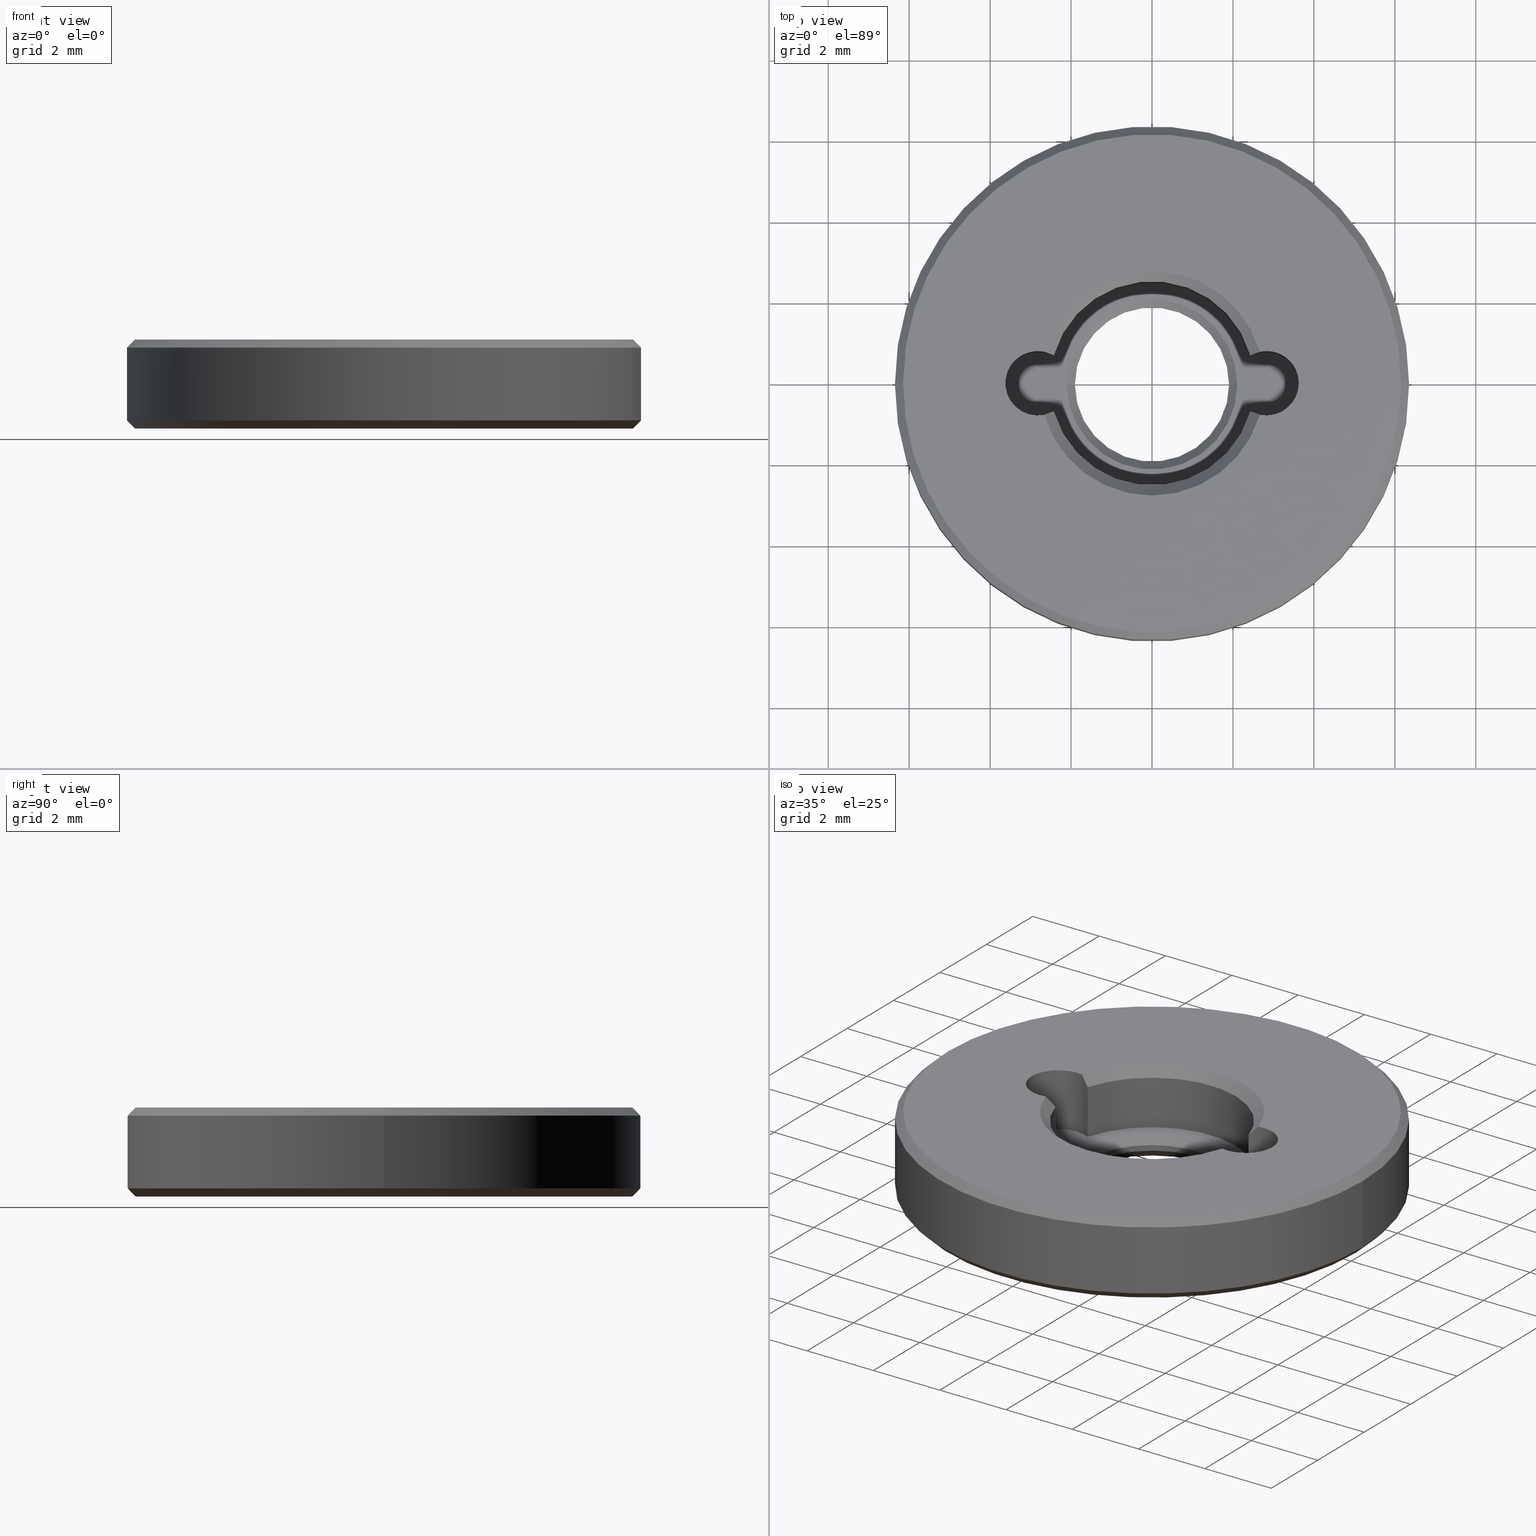
[diagram: canonical four-view strip — front | top / right | iso, engineering-drawing reading convention]
A machine part, canonical four-view strip (front | top / right | iso — engineering-drawing reading convention). The complete STEP part file that produces these views, byte-faithful:
ISO-10303-21;
HEADER;
FILE_DESCRIPTION (( 'STEP AP203' ),
    '1' );
FILE_NAME ('1.6.4.5-ZSJ-05-5.STEP',
    '2024-04-15T05:49:25',
    ( '' ),
    ( '' ),
    'SwSTEP 2.0',
    'SolidWorks 2021',
    '' );
FILE_SCHEMA (( 'CONFIG_CONTROL_DESIGN' ));
ENDSEC;

DATA;
#1 = CARTESIAN_POINT ( 'NONE',  ( 1.905000000000000027, 0.000000000000000000, 0.000000000000000000 ) ) ;
#2 = CARTESIAN_POINT ( 'NONE',  ( 1.905000000000000027, 0.000000000000000000, 0.2500000000000008882 ) ) ;
#3 = ORIENTED_EDGE ( 'NONE', *, *, #493, .F. ) ;
#4 = EDGE_CURVE ( 'NONE', #21, #462, #31, .T. ) ;
#5 = CARTESIAN_POINT ( 'NONE',  ( 2.427654867256636706, -0.6943463440424815225, 1.949999999999998623 ) ) ;
#6 = DIRECTION ( 'NONE',  ( 1.000000000000000000, 0.000000000000000000, 0.000000000000000000 ) ) ;
#7 = CC_DESIGN_PERSON_AND_ORGANIZATION_ASSIGNMENT ( #301, #518, ( #390 ) ) ;
#8 = CARTESIAN_POINT ( 'NONE',  ( 0.000000000000000000, 0.000000000000000000, 0.1999999999999987899 ) ) ;
#9 = EDGE_LOOP ( 'NONE', ( #118, #328, #132, #281 ) ) ;
#10 = AXIS2_PLACEMENT_3D ( 'NONE', #170, #382, #608 ) ;
#11 = ADVANCED_FACE ( 'NONE', ( #486 ), #342, .F. ) ;
#12 = CARTESIAN_POINT ( 'NONE',  ( -2.427654867256636706, -0.6943463440424824107, 1.400000000000000133 ) ) ;
#13 = DIRECTION ( 'NONE',  ( 1.000000000000000000, 0.000000000000000000, 0.000000000000000000 ) ) ;
#14 = ORIENTED_EDGE ( 'NONE', *, *, #179, .T. ) ;
#15 = MECHANICAL_CONTEXT ( 'NONE', #686, 'mechanical' ) ;
#16 = DIRECTION ( 'NONE',  ( 1.000000000000000000, 0.000000000000000000, 0.000000000000000000 ) ) ;
#17 = VERTEX_POINT ( 'NONE', #163 ) ;
#18 = APPLICATION_CONTEXT ( 'configuration controlled 3d designs of mechanical parts and assemblies' ) ;
#19 = DIRECTION ( 'NONE',  ( -0.000000000000000000, -0.000000000000000000, -1.000000000000000000 ) ) ;
#20 = DIRECTION ( 'NONE',  ( 0.000000000000000000, 0.000000000000000000, -1.000000000000000000 ) ) ;
#21 = VERTEX_POINT ( 'NONE', #150 ) ;
#22 = VECTOR ( 'NONE', #269, 999.9999999999998863 ) ;
#23 = APPROVAL_STATUS ( 'not_yet_approved' ) ;
#24 = VECTOR ( 'NONE', #617, 1000.000000000000000 ) ;
#25 = ORIENTED_EDGE ( 'NONE', *, *, #26, .T. ) ;
#26 = EDGE_CURVE ( 'NONE', #653, #522, #477, .T. ) ;
#27 = COORDINATED_UNIVERSAL_TIME_OFFSET ( 8, 0, .AHEAD. ) ;
#28 = CARTESIAN_POINT ( 'NONE',  ( 2.824999999999999734, 3.459627207591272175E-16, 2.200000000000000178 ) ) ;
#29 = ORIENTED_EDGE ( 'NONE', *, *, #311, .F. ) ;
#30 = APPROVAL ( #627, 'δָ��' ) ;
#31 = CIRCLE ( 'NONE', #373, 1.905000000000000027 ) ;
#32 = CARTESIAN_POINT ( 'NONE',  ( -2.579803107964387721, 0.7661303284904835698, 2.116150911711492721 ) ) ;
#33 = DIRECTION ( 'NONE',  ( 0.000000000000000000, 0.000000000000000000, 1.000000000000000000 ) ) ;
#34 = VERTEX_POINT ( 'NONE', #268 ) ;
#35 = PRODUCT ( '1.6.4.5-ZSJ-05-5', '1.6.4.5-ZSJ-05-5', '', ( #15 ) ) ;
#36 = CONICAL_SURFACE ( 'NONE', #290, 2.155000000000000693, 0.7853981633974479459 ) ;
#37 = EDGE_CURVE ( 'NONE', #440, #17, #554, .T. ) ;
#38 = VERTEX_POINT ( 'NONE', #262 ) ;
#39 = FACE_OUTER_BOUND ( 'NONE', #178, .T. ) ;
#40 = DIRECTION ( 'NONE',  ( 1.000000000000000000, 0.000000000000000000, 0.000000000000000000 ) ) ;
#41 = CARTESIAN_POINT ( 'NONE',  ( 2.427654867256636706, -0.6943463440424815225, 1.949999999999998623 ) ) ;
#42 = DIRECTION ( 'NONE',  ( 0.7071067811865490160, 0.000000000000000000, 0.7071067811865460184 ) ) ;
#43 = CARTESIAN_POINT ( 'NONE',  ( -2.155000000000000693, 0.000000000000000000, 0.000000000000000000 ) ) ;
#44 = CIRCLE ( 'NONE', #10, 2.524999999999999911 ) ;
#45 = CARTESIAN_POINT ( 'NONE',  ( -2.824999999999999734, -3.459627207591272175E-16, -1.662741699796954853 ) ) ;
#46 = EDGE_CURVE ( 'NONE', #446, #550, #640, .T. ) ;
#47 = CALENDAR_DATE ( 2024, 15, 4 ) ;
#48 = CARTESIAN_POINT ( 'NONE',  ( 6.349999999999999645, 7.776507174585692163E-16, 0.1999999999999987899 ) ) ;
#49 = CARTESIAN_POINT ( 'NONE',  ( -2.427654867256636706, 0.6943463440424816335, 1.400000000000000133 ) ) ;
#50 = EDGE_LOOP ( 'NONE', ( #309, #559, #89, #507, #454 ) ) ;
#51 = CARTESIAN_POINT ( 'NONE',  ( -6.349999999999999645, 7.776507174585692163E-16, 0.1999999999999987899 ) ) ;
#52 = CARTESIAN_POINT ( 'NONE',  ( 0.000000000000000000, 0.000000000000000000, 2.200000000000000178 ) ) ;
#53 = AXIS2_PLACEMENT_3D ( 'NONE', #439, #376, #40 ) ;
#54 = EDGE_CURVE ( 'NONE', #443, #603, #146, .T. ) ;
#55 = CARTESIAN_POINT ( 'NONE',  ( 0.000000000000000000, 0.000000000000000000, 0.4000000000000016875 ) ) ;
#56 = VERTEX_POINT ( 'NONE', #698 ) ;
#57 = ORIENTED_EDGE ( 'NONE', *, *, #152, .F. ) ;
#58 = LOCAL_TIME ( 13, 49, 25.00000000000000000, #193 ) ;
#59 = DIRECTION ( 'NONE',  ( 0.000000000000000000, 0.000000000000000000, 1.000000000000000000 ) ) ;
#60 = CARTESIAN_POINT ( 'NONE',  ( 0.000000000000000000, 0.000000000000000000, 0.1999999999999987899 ) ) ;
#61 = ORIENTED_EDGE ( 'NONE', *, *, #457, .T. ) ;
#62 = DIRECTION ( 'NONE',  ( -1.000000000000000000, 0.000000000000000000, 0.000000000000000000 ) ) ;
#63 = AXIS2_PLACEMENT_3D ( 'NONE', #212, #205, #650 ) ;
#64 = DIRECTION ( 'NONE',  ( -1.000000000000000000, 0.000000000000000000, 0.000000000000000000 ) ) ;
#65 = ORIENTED_EDGE ( 'NONE', *, *, #292, .T. ) ;
#66 = CARTESIAN_POINT ( 'NONE',  ( 6.349999999999999645, 0.000000000000000000, 0.1999999999999987899 ) ) ;
#67 = CONICAL_SURFACE ( 'NONE', #469, 6.349999999999999645, 0.7853981633974504994 ) ;
#68 = ORIENTED_EDGE ( 'NONE', *, *, #287, .F. ) ;
#69 = EDGE_CURVE ( 'NONE', #387, #187, #240, .T. ) ;
#70 = DIRECTION ( 'NONE',  ( -0.000000000000000000, -0.000000000000000000, 1.000000000000000000 ) ) ;
#71 = ORIENTED_EDGE ( 'NONE', *, *, #451, .F. ) ;
#72 = APPLICATION_PROTOCOL_DEFINITION ( 'international standard', 'config_control_design', 1994, #686 ) ;
#73 = ORIENTED_EDGE ( 'NONE', *, *, #206, .T. ) ;
#74 = EDGE_CURVE ( 'NONE', #243, #502, #93, .T. ) ;
#75 = DIRECTION ( 'NONE',  ( 1.000000000000000000, 0.000000000000000000, 0.000000000000000000 ) ) ;
#76 = ORIENTED_EDGE ( 'NONE', *, *, #645, .T. ) ;
#77 = CONICAL_SURFACE ( 'NONE', #478, 6.149999999999999467, 0.7853981633974503884 ) ;
#78 = VECTOR ( 'NONE', #395, 1000.000000000000000 ) ;
#79 = APPROVAL_DATE_TIME ( #619, #338 ) ;
#80 = DIRECTION ( 'NONE',  ( 1.000000000000000000, 0.000000000000000000, 0.000000000000000000 ) ) ;
#81 = VERTEX_POINT ( 'NONE', #366 ) ;
#82 = APPROVAL_ROLE ( '' ) ;
#83 = CARTESIAN_POINT ( 'NONE',  ( 0.000000000000000000, 0.000000000000000000, 0.1999999999999987899 ) ) ;
#84 = ORIENTED_EDGE ( 'NONE', *, *, #684, .T. ) ;
#85 = EDGE_CURVE ( 'NONE', #620, #653, #536, .T. ) ;
#86 = COORDINATED_UNIVERSAL_TIME_OFFSET ( 8, 0, .AHEAD. ) ;
#87 = DIRECTION ( 'NONE',  ( 1.000000000000000000, 0.000000000000000000, 0.000000000000000000 ) ) ;
#88 = CONICAL_SURFACE ( 'NONE', #666, 2.155000000000000693, 0.7853981633974479459 ) ;
#89 = ORIENTED_EDGE ( 'NONE', *, *, #311, .T. ) ;
#90 = CIRCLE ( 'NONE', #127, 0.8000000000000008216 ) ;
#91 = APPROVAL_DATE_TIME ( #575, #30 ) ;
#92 = CARTESIAN_POINT ( 'NONE',  ( 0.000000000000000000, 0.000000000000000000, 0.6000000000000000888 ) ) ;
#93 = LINE ( 'NONE', #635, #347 ) ;
#94 = APPROVAL_PERSON_ORGANIZATION ( #412, #169, #82 ) ;
#95 = VECTOR ( 'NONE', #567, 1000.000000000000000 ) ;
#96 = PERSON_AND_ORGANIZATION ( #693, #222 ) ;
#97 = DIRECTION ( 'NONE',  ( 1.000000000000000000, 0.000000000000000000, 0.000000000000000000 ) ) ;
#98 = FACE_OUTER_BOUND ( 'NONE', #528, .T. ) ;
#99 = DIRECTION ( 'NONE',  ( -1.000000000000000000, 0.000000000000000000, 0.000000000000000000 ) ) ;
#100 = ADVANCED_FACE ( 'NONE', ( #101 ), #88, .F. ) ;
#101 = FACE_OUTER_BOUND ( 'NONE', #248, .T. ) ;
#102 = LINE ( 'NONE', #537, #378 ) ;
#103 = CONICAL_SURFACE ( 'NONE', #198, 6.149999999999999467, 0.7853981633974503884 ) ;
#104 = CARTESIAN_POINT ( 'NONE',  ( 0.000000000000000000, 0.000000000000000000, 2.200000000000000178 ) ) ;
#105 = DIRECTION ( 'NONE',  ( -0.000000000000000000, -0.000000000000000000, -1.000000000000000000 ) ) ;
#106 = DIRECTION ( 'NONE',  ( 1.000000000000000000, 0.000000000000000000, 0.000000000000000000 ) ) ;
#107 = ORIENTED_EDGE ( 'NONE', *, *, #206, .F. ) ;
#108 = ADVANCED_FACE ( 'NONE', ( #98 ), #318, .F. ) ;
#109 = CARTESIAN_POINT ( 'NONE',  ( -1.905000000000000027, 2.332952152375707747E-16, 0.000000000000000000 ) ) ;
#110 = ORIENTED_EDGE ( 'NONE', *, *, #417, .F. ) ;
#111 = CARTESIAN_POINT ( 'NONE',  ( 2.824999999999999734, 3.459627207591272175E-16, 2.200000000000000178 ) ) ;
#112 = CIRCLE ( 'NONE', #564, 0.8000000000000008216 ) ;
#113 = DIRECTION ( 'NONE',  ( 1.000000000000000000, 0.000000000000000000, 0.000000000000000000 ) ) ;
#114 = ORIENTED_EDGE ( 'NONE', *, *, #488, .F. ) ;
#115 = CIRCLE ( 'NONE', #706, 0.8000000000000008216 ) ;
#116 = LINE ( 'NONE', #12, #24 ) ;
#117 = ORIENTED_EDGE ( 'NONE', *, *, #253, .F. ) ;
#118 = ORIENTED_EDGE ( 'NONE', *, *, #696, .F. ) ;
#119 = CYLINDRICAL_SURFACE ( 'NONE', #232, 6.349999999999999645 ) ;
#120 = CLOSED_SHELL ( 'NONE', ( #188, #468, #200, #11, #100, #539, #429, #533, #616, #598, #157, #304, #362, #282, #261, #133, #213, #610, #322, #579, #108, #381 ) ) ;
#121 = CARTESIAN_POINT ( 'NONE',  ( 0.000000000000000000, 0.000000000000000000, 0.000000000000000000 ) ) ;
#122 = EDGE_CURVE ( 'NONE', #620, #300, #217, .T. ) ;
#123 = ORIENTED_EDGE ( 'NONE', *, *, #570, .F. ) ;
#124 = DIRECTION ( 'NONE',  ( 1.000000000000000000, 0.000000000000000000, 0.000000000000000000 ) ) ;
#125 = DIRECTION ( 'NONE',  ( 0.000000000000000000, 0.000000000000000000, 1.000000000000000000 ) ) ;
#126 = CC_DESIGN_PERSON_AND_ORGANIZATION_ASSIGNMENT ( #96, #425, ( #189 ) ) ;
#127 = AXIS2_PLACEMENT_3D ( 'NONE', #235, #339, #552 ) ;
#128 = CARTESIAN_POINT ( 'NONE',  ( 2.155000000000000693, 2.639113852162547097E-16, 0.000000000000000000 ) ) ;
#129 = ORIENTED_EDGE ( 'NONE', *, *, #655, .F. ) ;
#130 = EDGE_CURVE ( 'NONE', #21, #56, #483, .T. ) ;
#131 = DIRECTION ( 'NONE',  ( 1.000000000000000000, 0.000000000000000000, 0.000000000000000000 ) ) ;
#132 = ORIENTED_EDGE ( 'NONE', *, *, #684, .F. ) ;
#133 = ADVANCED_FACE ( 'NONE', ( #274 ), #364, .F. ) ;
#134 = CARTESIAN_POINT ( 'NONE',  ( -2.662168141592921700, 0.7832533344248834295, 2.200000000000000178 ) ) ;
#135 = FACE_BOUND ( 'NONE', #591, .T. ) ;
#136 = EDGE_LOOP ( 'NONE', ( #294, #542, #25, #194 ) ) ;
#137 = B_SPLINE_CURVE_WITH_KNOTS ( 'NONE', 3,
 ( #354, #199, #612, #624 ),
 .UNSPECIFIED., .F., .F.,
 ( 4, 4 ),
 ( 2.815520022824704393E-07, 0.0003544014875863180114 ),
 .UNSPECIFIED. ) ;
#138 = CIRCLE ( 'NONE', #424, 2.775000000000001243 ) ;
#139 = AXIS2_PLACEMENT_3D ( 'NONE', #8, #166, #386 ) ;
#140 = APPROVAL_STATUS ( 'not_yet_approved' ) ;
#141 = ORIENTED_EDGE ( 'NONE', *, *, #54, .T. ) ;
#142 = CARTESIAN_POINT ( 'NONE',  ( 0.000000000000000000, 0.000000000000000000, 0.000000000000000000 ) ) ;
#143 = ORIENTED_EDGE ( 'NONE', *, *, #4, .T. ) ;
#144 = SHAPE_DEFINITION_REPRESENTATION ( #525, #475 ) ;
#145 = LINE ( 'NONE', #644, #658 ) ;
#146 = CIRCLE ( 'NONE', #574, 2.775000000000001243 ) ;
#147 = EDGE_LOOP ( 'NONE', ( #549, #699, #57, #626 ) ) ;
#148 = SECURITY_CLASSIFICATION_LEVEL ( 'unclassified' ) ;
#149 = CARTESIAN_POINT ( 'NONE',  ( 2.824999999999999734, 3.459627207591272175E-16, -1.662741699796954853 ) ) ;
#150 = CARTESIAN_POINT ( 'NONE',  ( 1.905000000000000027, 0.000000000000000000, 0.4000000000000016875 ) ) ;
#151 = CC_DESIGN_APPROVAL ( #338, ( #390 ) ) ;
#152 = EDGE_CURVE ( 'NONE', #603, #561, #333, .T. ) ;
#153 = DIRECTION ( 'NONE',  ( 0.000000000000000000, 0.000000000000000000, -1.000000000000000000 ) ) ;
#154 = DIRECTION ( 'NONE',  ( -0.000000000000000000, -0.000000000000000000, -1.000000000000000000 ) ) ;
#155 = DESIGN_CONTEXT ( 'detailed design', #18, 'design' ) ;
#156 = VECTOR ( 'NONE', #324, 1000.000000000000000 ) ;
#157 = ADVANCED_FACE ( 'NONE', ( #586, #474 ), #688, .T. ) ;
#158 = DIRECTION ( 'NONE',  ( 0.7071067811865490160, 8.659560562354950115E-17, -0.7071067811865459074 ) ) ;
#159 = DIRECTION ( 'NONE',  ( 1.000000000000000000, 0.000000000000000000, 0.000000000000000000 ) ) ;
#160 = CALENDAR_DATE ( 2024, 15, 4 ) ;
#161 = AXIS2_PLACEMENT_3D ( 'NONE', #593, #661, #181 ) ;
#162 = DIRECTION ( 'NONE',  ( 1.000000000000000000, 0.000000000000000000, 0.000000000000000000 ) ) ;
#163 = CARTESIAN_POINT ( 'NONE',  ( -2.427654867256636706, 0.6943463440424815225, 1.949999999999998623 ) ) ;
#164 = ORIENTED_EDGE ( 'NONE', *, *, #46, .T. ) ;
#165 = EDGE_CURVE ( 'NONE', #17, #38, #321, .T. ) ;
#166 = DIRECTION ( 'NONE',  ( -0.000000000000000000, -0.000000000000000000, 1.000000000000000000 ) ) ;
#167 = CARTESIAN_POINT ( 'NONE',  ( 6.349999999999999645, 7.776507174585692163E-16, 2.000000000000000444 ) ) ;
#168 = ORIENTED_EDGE ( 'NONE', *, *, #511, .F. ) ;
#169 = APPROVAL ( #140, 'δָ��' ) ;
#170 = CARTESIAN_POINT ( 'NONE',  ( 0.000000000000000000, 0.000000000000000000, 1.949999999999998623 ) ) ;
#171 = CYLINDRICAL_SURFACE ( 'NONE', #329, 0.8000000000000008216 ) ;
#172 = ORIENTED_EDGE ( 'NONE', *, *, #645, .F. ) ;
#173 = ORIENTED_EDGE ( 'NONE', *, *, #122, .T. ) ;
#174 = CARTESIAN_POINT ( 'NONE',  ( 2.427654867256636706, -0.6943463440424815225, 0.6000000000000003109 ) ) ;
#175 = AXIS2_PLACEMENT_3D ( 'NONE', #83, #572, #87 ) ;
#176 = AXIS2_PLACEMENT_3D ( 'NONE', #397, #663, #348 ) ;
#177 = EDGE_LOOP ( 'NONE', ( #569, #466, #239, #296 ) ) ;
#178 = EDGE_LOOP ( 'NONE', ( #345, #73, #110, #651, #258 ) ) ;
#179 = EDGE_CURVE ( 'NONE', #607, #38, #490, .T. ) ;
#180 = CARTESIAN_POINT ( 'NONE',  ( 0.000000000000000000, 0.000000000000000000, 0.4000000000000016875 ) ) ;
#181 = DIRECTION ( 'NONE',  ( 1.000000000000000000, 0.000000000000000000, 0.000000000000000000 ) ) ;
#182 = FACE_OUTER_BOUND ( 'NONE', #177, .T. ) ;
#183 = EDGE_LOOP ( 'NONE', ( #340, #61, #114, #415 ) ) ;
#184 = AXIS2_PLACEMENT_3D ( 'NONE', #646, #125, #13 ) ;
#185 = CARTESIAN_POINT ( 'NONE',  ( -6.349999999999999645, 0.000000000000000000, 2.000000000000000444 ) ) ;
#186 = FACE_OUTER_BOUND ( 'NONE', #418, .T. ) ;
#187 = VERTEX_POINT ( 'NONE', #2 ) ;
#188 = ADVANCED_FACE ( 'NONE', ( #393 ), #171, .F. ) ;
#189 = SECURITY_CLASSIFICATION ( '', '', #148 ) ;
#190 = AXIS2_PLACEMENT_3D ( 'NONE', #297, #19, #515 ) ;
#191 = DIRECTION ( 'NONE',  ( 0.000000000000000000, 0.000000000000000000, 1.000000000000000000 ) ) ;
#192 = ORIENTED_EDGE ( 'NONE', *, *, #331, .T. ) ;
#193 = COORDINATED_UNIVERSAL_TIME_OFFSET ( 8, 0, .AHEAD. ) ;
#194 = ORIENTED_EDGE ( 'NONE', *, *, #560, .T. ) ;
#195 = DATE_TIME_ROLE ( 'creation_date' ) ;
#196 = ORIENTED_EDGE ( 'NONE', *, *, #480, .T. ) ;
#197 = AXIS2_PLACEMENT_3D ( 'NONE', #450, #498, #6 ) ;
#198 = AXIS2_PLACEMENT_3D ( 'NONE', #438, #492, #444 ) ;
#199 = CARTESIAN_POINT ( 'NONE',  ( 2.579803107964387276, 0.7661303284904842359, 2.116150911711492721 ) ) ;
#200 = ADVANCED_FACE ( 'NONE', ( #398 ), #67, .T. ) ;
#201 = ORIENTED_EDGE ( 'NONE', *, *, #130, .F. ) ;
#202 = LINE ( 'NONE', #580, #545 ) ;
#203 = DIRECTION ( 'NONE',  ( 0.000000000000000000, 0.000000000000000000, 1.000000000000000000 ) ) ;
#204 = DIRECTION ( 'NONE',  ( 1.000000000000000000, 0.000000000000000000, 0.000000000000000000 ) ) ;
#205 = DIRECTION ( 'NONE',  ( 0.000000000000000000, 0.000000000000000000, 1.000000000000000000 ) ) ;
#206 = EDGE_CURVE ( 'NONE', #303, #516, #90, .T. ) ;
#207 = CIRCLE ( 'NONE', #597, 6.149999999999999467 ) ;
#208 = LINE ( 'NONE', #51, #330 ) ;
#209 = DIRECTION ( 'NONE',  ( 1.000000000000000000, 0.000000000000000000, 0.000000000000000000 ) ) ;
#210 = VECTOR ( 'NONE', #599, 1000.000000000000114 ) ;
#211 = CARTESIAN_POINT ( 'NONE',  ( 2.579803107964387721, -0.7661303284904835698, 2.116150911711493166 ) ) ;
#212 = CARTESIAN_POINT ( 'NONE',  ( 0.000000000000000000, 0.000000000000000000, 1.949999999999998623 ) ) ;
#213 = ADVANCED_FACE ( 'NONE', ( #383 ), #36, .F. ) ;
#214 = LINE ( 'NONE', #697, #22 ) ;
#215 = DIRECTION ( 'NONE',  ( 0.000000000000000000, 0.000000000000000000, 1.000000000000000000 ) ) ;
#216 = ORIENTED_EDGE ( 'NONE', *, *, #287, .T. ) ;
#217 = CIRCLE ( 'NONE', #700, 6.149999999999999467 ) ;
#218 = DIRECTION ( 'NONE',  ( -0.000000000000000000, -0.000000000000000000, 1.000000000000000000 ) ) ;
#219 = DIRECTION ( 'NONE',  ( -0.000000000000000000, -0.000000000000000000, 1.000000000000000000 ) ) ;
#220 = ORIENTED_EDGE ( 'NONE', *, *, #508, .T. ) ;
#221 = LOCAL_TIME ( 13, 49, 25.00000000000000000, #419 ) ;
#222 = ORGANIZATION ( 'δָ��', 'δָ��', '' ) ;
#223 = CARTESIAN_POINT ( 'NONE',  ( -2.662168141592921700, 0.7832533344248834295, 2.200000000000000178 ) ) ;
#224 = ORIENTED_EDGE ( 'NONE', *, *, #560, .F. ) ;
#225 = ORIENTED_EDGE ( 'NONE', *, *, #4, .F. ) ;
#226 = DIRECTION ( 'NONE',  ( -0.000000000000000000, -0.000000000000000000, -1.000000000000000000 ) ) ;
#227 = VERTEX_POINT ( 'NONE', #510 ) ;
#228 = ORIENTED_EDGE ( 'NONE', *, *, #511, .T. ) ;
#229 = EDGE_CURVE ( 'NONE', #81, #38, #587, .T. ) ;
#230 = FACE_OUTER_BOUND ( 'NONE', #453, .T. ) ;
#231 = AXIS2_PLACEMENT_3D ( 'NONE', #149, #312, #485 ) ;
#232 = AXIS2_PLACEMENT_3D ( 'NONE', #592, #543, #62 ) ;
#233 = ORIENTED_EDGE ( 'NONE', *, *, #130, .T. ) ;
#234 = CARTESIAN_POINT ( 'NONE',  ( 0.000000000000000000, 0.000000000000000000, 0.000000000000000000 ) ) ;
#235 = CARTESIAN_POINT ( 'NONE',  ( 2.824999999999999734, 3.459627207591272175E-16, 0.6000000000000003109 ) ) ;
#236 = ORIENTED_EDGE ( 'NONE', *, *, #553, .T. ) ;
#237 = PERSON_AND_ORGANIZATION ( #693, #222 ) ;
#238 = EDGE_CURVE ( 'NONE', #243, #653, #611, .T. ) ;
#239 = ORIENTED_EDGE ( 'NONE', *, *, #37, .T. ) ;
#240 = CIRCLE ( 'NONE', #523, 1.905000000000000027 ) ;
#241 = CARTESIAN_POINT ( 'NONE',  ( -2.427654867256636706, 0.6943463440424815225, 1.949999999999998623 ) ) ;
#242 = VECTOR ( 'NONE', #589, 1000.000000000000000 ) ;
#243 = VERTEX_POINT ( 'NONE', #167 ) ;
#244 = DIRECTION ( 'NONE',  ( -0.000000000000000000, -0.000000000000000000, -1.000000000000000000 ) ) ;
#245 = CC_DESIGN_APPROVAL ( #169, ( #405 ) ) ;
#246 =( GEOMETRIC_REPRESENTATION_CONTEXT ( 3 ) GLOBAL_UNCERTAINTY_ASSIGNED_CONTEXT ( ( #692 ) ) GLOBAL_UNIT_ASSIGNED_CONTEXT ( ( #358, #254, #467 ) ) REPRESENTATION_CONTEXT ( 'NONE', 'WORKASPACE' ) );
#247 = FACE_BOUND ( 'NONE', #573, .T. ) ;
#248 = EDGE_LOOP ( 'NONE', ( #68, #286, #659, #680 ) ) ;
#249 = CALENDAR_DATE ( 2024, 15, 4 ) ;
#250 = DIRECTION ( 'NONE',  ( -1.000000000000000000, 0.000000000000000000, 0.000000000000000000 ) ) ;
#251 = AXIS2_PLACEMENT_3D ( 'NONE', #491, #423, #159 ) ;
#252 = EDGE_LOOP ( 'NONE', ( #664, #472, #487, #384 ) ) ;
#253 = EDGE_CURVE ( 'NONE', #550, #446, #527, .T. ) ;
#254 =( NAMED_UNIT ( * ) PLANE_ANGLE_UNIT ( ) SI_UNIT ( $, .RADIAN. ) );
#255 = ORIENTED_EDGE ( 'NONE', *, *, #451, .T. ) ;
#256 = AXIS2_PLACEMENT_3D ( 'NONE', #625, #20, #80 ) ;
#257 = CC_DESIGN_PERSON_AND_ORGANIZATION_ASSIGNMENT ( #237, #455, ( #35 ) ) ;
#258 = ORIENTED_EDGE ( 'NONE', *, *, #622, .T. ) ;
#259 = DATE_AND_TIME ( #47, #705 ) ;
#260 = DIRECTION ( 'NONE',  ( -1.000000000000000000, 0.000000000000000000, 0.000000000000000000 ) ) ;
#261 = ADVANCED_FACE ( 'NONE', ( #396 ), #606, .F. ) ;
#262 = CARTESIAN_POINT ( 'NONE',  ( -2.427654867256636706, 0.6943463440424815225, 0.6000000000000003109 ) ) ;
#263 = CARTESIAN_POINT ( 'NONE',  ( 0.000000000000000000, 0.000000000000000000, 0.6000000000000000888 ) ) ;
#264 = CARTESIAN_POINT ( 'NONE',  ( -2.662168141592921700, -0.7832533344248840956, 2.200000000000000178 ) ) ;
#265 = AXIS2_PLACEMENT_3D ( 'NONE', #276, #226, #660 ) ;
#266 = PERSON_AND_ORGANIZATION ( #693, #222 ) ;
#267 = CARTESIAN_POINT ( 'NONE',  ( 2.662168141592921700, -0.7832533344248834295, 2.200000000000000178 ) ) ;
#268 = CARTESIAN_POINT ( 'NONE',  ( 6.150000000000000355, 0.000000000000000000, 0.000000000000000000 ) ) ;
#269 = DIRECTION ( 'NONE',  ( -0.7071067811865472397, 0.000000000000000000, -0.7071067811865479058 ) ) ;
#270 = DIRECTION ( 'NONE',  ( 0.000000000000000000, 0.000000000000000000, -1.000000000000000000 ) ) ;
#271 = ORIENTED_EDGE ( 'NONE', *, *, #503, .F. ) ;
#272 = CC_DESIGN_PERSON_AND_ORGANIZATION_ASSIGNMENT ( #582, #578, ( #405 ) ) ;
#273 = LINE ( 'NONE', #1, #78 ) ;
#274 = FACE_OUTER_BOUND ( 'NONE', #147, .T. ) ;
#275 = VECTOR ( 'NONE', #372, 1000.000000000000000 ) ;
#276 = CARTESIAN_POINT ( 'NONE',  ( 0.000000000000000000, 0.000000000000000000, 0.6000000000000000888 ) ) ;
#277 = ORIENTED_EDGE ( 'NONE', *, *, #409, .F. ) ;
#278 = ORIENTED_EDGE ( 'NONE', *, *, #165, .F. ) ;
#279 = CARTESIAN_POINT ( 'NONE',  ( -2.662168141592921700, -0.7832533344248840956, 2.200000000000000178 ) ) ;
#280 = CARTESIAN_POINT ( 'NONE',  ( -2.824999999999999734, -3.459627207591272175E-16, 0.6000000000000003109 ) ) ;
#281 = ORIENTED_EDGE ( 'NONE', *, *, #37, .F. ) ;
#282 = ADVANCED_FACE ( 'NONE', ( #247, #512 ), #671, .T. ) ;
#283 = EDGE_LOOP ( 'NONE', ( #173, #192 ) ) ;
#284 = DIRECTION ( 'NONE',  ( 1.000000000000000000, 0.000000000000000000, 0.000000000000000000 ) ) ;
#285 = DIRECTION ( 'NONE',  ( -0.000000000000000000, -0.000000000000000000, -1.000000000000000000 ) ) ;
#286 = ORIENTED_EDGE ( 'NONE', *, *, #346, .T. ) ;
#287 = EDGE_CURVE ( 'NONE', #187, #387, #557, .T. ) ;
#288 = ORIENTED_EDGE ( 'NONE', *, *, #375, .F. ) ;
#289 = DIRECTION ( 'NONE',  ( 1.000000000000000000, 0.000000000000000000, 0.000000000000000000 ) ) ;
#290 = AXIS2_PLACEMENT_3D ( 'NONE', #334, #548, #64 ) ;
#291 = CIRCLE ( 'NONE', #505, 6.349999999999999645 ) ;
#292 = EDGE_CURVE ( 'NONE', #653, #243, #413, .T. ) ;
#293 = DIRECTION ( 'NONE',  ( 1.000000000000000000, 0.000000000000000000, 0.000000000000000000 ) ) ;
#294 = ORIENTED_EDGE ( 'NONE', *, *, #74, .F. ) ;
#295 = CC_DESIGN_DATE_AND_TIME_ASSIGNMENT ( #464, #195, ( #390 ) ) ;
#296 = ORIENTED_EDGE ( 'NONE', *, *, #165, .T. ) ;
#297 = CARTESIAN_POINT ( 'NONE',  ( 0.000000000000000000, 0.000000000000000000, 0.6000000000000000888 ) ) ;
#298 = CARTESIAN_POINT ( 'NONE',  ( 0.000000000000000000, 0.000000000000000000, 0.6000000000000000888 ) ) ;
#299 = AXIS2_PLACEMENT_3D ( 'NONE', #92, #482, #683 ) ;
#300 = VERTEX_POINT ( 'NONE', #302 ) ;
#301 = PERSON_AND_ORGANIZATION ( #693, #222 ) ;
#302 = CARTESIAN_POINT ( 'NONE',  ( 6.149999999999999467, 7.654042494670954648E-16, 2.200000000000000178 ) ) ;
#303 = VERTEX_POINT ( 'NONE', #359 ) ;
#304 = ADVANCED_FACE ( 'NONE', ( #186, #135 ), #519, .F. ) ;
#305 = CARTESIAN_POINT ( 'NONE',  ( 2.427654867256636706, 0.6943463440424824107, 1.400000000000000133 ) ) ;
#306 = DIRECTION ( 'NONE',  ( 1.000000000000000000, 0.000000000000000000, -0.000000000000000000 ) ) ;
#307 = ORIENTED_EDGE ( 'NONE', *, *, #69, .F. ) ;
#308 = CARTESIAN_POINT ( 'NONE',  ( 0.000000000000000000, 0.000000000000000000, 2.200000000000000178 ) ) ;
#309 = ORIENTED_EDGE ( 'NONE', *, *, #655, .T. ) ;
#310 = AXIS2_PLACEMENT_3D ( 'NONE', #280, #285, #16 ) ;
#311 = EDGE_CURVE ( 'NONE', #227, #647, #349, .T. ) ;
#312 = DIRECTION ( 'NONE',  ( -0.000000000000000000, -0.000000000000000000, 1.000000000000000000 ) ) ;
#313 = DIRECTION ( 'NONE',  ( -0.000000000000000000, -0.000000000000000000, -1.000000000000000000 ) ) ;
#314 = CARTESIAN_POINT ( 'NONE',  ( -2.104999999999999094, 2.577881512205177847E-16, 0.6000000000000000888 ) ) ;
#315 = DIRECTION ( 'NONE',  ( -1.000000000000000000, 0.000000000000000000, 0.000000000000000000 ) ) ;
#316 = PERSON_AND_ORGANIZATION ( #693, #222 ) ;
#317 = DIRECTION ( 'NONE',  ( -0.000000000000000000, -0.000000000000000000, -1.000000000000000000 ) ) ;
#318 = CYLINDRICAL_SURFACE ( 'NONE', #643, 0.8000000000000008216 ) ;
#319 = AXIS2_PLACEMENT_3D ( 'NONE', #701, #218, #289 ) ;
#320 = DIRECTION ( 'NONE',  ( 1.000000000000000000, 0.000000000000000000, 0.000000000000000000 ) ) ;
#321 = LINE ( 'NONE', #49, #400 ) ;
#322 = ADVANCED_FACE ( 'NONE', ( #465 ), #434, .T. ) ;
#323 = DIRECTION ( 'NONE',  ( 0.000000000000000000, 0.000000000000000000, 1.000000000000000000 ) ) ;
#324 = DIRECTION ( 'NONE',  ( -0.000000000000000000, -0.000000000000000000, -1.000000000000000000 ) ) ;
#325 = ORIENTED_EDGE ( 'NONE', *, *, #622, .F. ) ;
#326 = DIRECTION ( 'NONE',  ( -0.000000000000000000, -0.000000000000000000, -1.000000000000000000 ) ) ;
#327 = CARTESIAN_POINT ( 'NONE',  ( 2.824999999999999734, 3.459627207591272175E-16, -1.662741699796954853 ) ) ;
#328 = ORIENTED_EDGE ( 'NONE', *, *, #355, .F. ) ;
#329 = AXIS2_PLACEMENT_3D ( 'NONE', #327, #601, #113 ) ;
#330 = VECTOR ( 'NONE', #371, 1000.000000000000114 ) ;
#331 = EDGE_CURVE ( 'NONE', #300, #620, #207, .T. ) ;
#332 = DIRECTION ( 'NONE',  ( 0.000000000000000000, 0.000000000000000000, 1.000000000000000000 ) ) ;
#333 = B_SPLINE_CURVE_WITH_KNOTS ( 'NONE', 3,
 ( #264, #695, #435, #642 ),
 .UNSPECIFIED., .F., .F.,
 ( 4, 4 ),
 ( 2.815520022824704393E-07, 0.0003544014875863181198 ),
 .UNSPECIFIED. ) ;
#334 = CARTESIAN_POINT ( 'NONE',  ( 0.000000000000000000, 0.000000000000000000, 0.000000000000000000 ) ) ;
#335 = ORIENTED_EDGE ( 'NONE', *, *, #74, .T. ) ;
#336 = ORIENTED_EDGE ( 'NONE', *, *, #238, .F. ) ;
#337 = CARTESIAN_POINT ( 'NONE',  ( -6.349999999999999645, 0.000000000000000000, 0.1999999999999987899 ) ) ;
#338 = APPROVAL ( #23, 'δָ��' ) ;
#339 = DIRECTION ( 'NONE',  ( -0.000000000000000000, -0.000000000000000000, -1.000000000000000000 ) ) ;
#340 = ORIENTED_EDGE ( 'NONE', *, *, #480, .F. ) ;
#341 = ORIENTED_EDGE ( 'NONE', *, *, #508, .F. ) ;
#342 = CONICAL_SURFACE ( 'NONE', #251, 1.905000000000000027, 0.7853981633974504994 ) ;
#343 = DIRECTION ( 'NONE',  ( -1.000000000000000000, 0.000000000000000000, 0.000000000000000000 ) ) ;
#344 = DIRECTION ( 'NONE',  ( -0.000000000000000000, -0.000000000000000000, 1.000000000000000000 ) ) ;
#345 = ORIENTED_EDGE ( 'NONE', *, *, #385, .F. ) ;
#346 = EDGE_CURVE ( 'NONE', #187, #550, #667, .T. ) ;
#347 = VECTOR ( 'NONE', #590, 1000.000000000000000 ) ;
#348 = DIRECTION ( 'NONE',  ( 1.000000000000000000, 0.000000000000000000, 0.000000000000000000 ) ) ;
#349 = CIRCLE ( 'NONE', #402, 0.8000000000000008216 ) ;
#350 = EDGE_CURVE ( 'NONE', #387, #446, #214, .T. ) ;
#351 = DIRECTION ( 'NONE',  ( 0.7071067811865472397, 8.659560562354930393E-17, -0.7071067811865479058 ) ) ;
#352 = EDGE_LOOP ( 'NONE', ( #255, #107, #129, #14, #563 ) ) ;
#353 = ORIENTED_EDGE ( 'NONE', *, *, #152, .T. ) ;
#354 = CARTESIAN_POINT ( 'NONE',  ( 2.662168141592921700, 0.7832533344248840956, 2.200000000000000178 ) ) ;
#355 = EDGE_CURVE ( 'NONE', #520, #647, #138, .T. ) ;
#356 = CIRCLE ( 'NONE', #504, 6.150000000000000355 ) ;
#357 = ORIENTED_EDGE ( 'NONE', *, *, #493, .T. ) ;
#358 =( LENGTH_UNIT ( ) NAMED_UNIT ( * ) SI_UNIT ( .MILLI., .METRE. ) );
#359 = CARTESIAN_POINT ( 'NONE',  ( 3.625000000000000444, 3.459627207591272175E-16, 0.6000000000000003109 ) ) ;
#360 = ORIENTED_EDGE ( 'NONE', *, *, #524, .F. ) ;
#361 = ORIENTED_EDGE ( 'NONE', *, *, #524, .T. ) ;
#362 = ADVANCED_FACE ( 'NONE', ( #638 ), #535, .F. ) ;
#363 = APPROVAL_ROLE ( '' ) ;
#364 = CONICAL_SURFACE ( 'NONE', #53, 2.524999999999999911, 0.7853981633974482790 ) ;
#365 = DIRECTION ( 'NONE',  ( -0.000000000000000000, -0.000000000000000000, 1.000000000000000000 ) ) ;
#366 = CARTESIAN_POINT ( 'NONE',  ( -2.427654867256636706, -0.6943463440424822997, 0.6000000000000003109 ) ) ;
#367 = DATE_TIME_ROLE ( 'classification_date' ) ;
#368 = CARTESIAN_POINT ( 'NONE',  ( 2.427654867256636706, -0.6943463440424816335, 1.400000000000000133 ) ) ;
#369 = CONICAL_SURFACE ( 'NONE', #615, 2.524999999999999911, 0.7853981633974482790 ) ;
#370 = DIRECTION ( 'NONE',  ( 0.000000000000000000, 0.000000000000000000, 1.000000000000000000 ) ) ;
#371 = DIRECTION ( 'NONE',  ( -0.7071067811865490160, 8.659560562354953812E-17, 0.7071067811865460184 ) ) ;
#372 = DIRECTION ( 'NONE',  ( -0.7071067811865490160, 0.000000000000000000, -0.7071067811865459074 ) ) ;
#373 = AXIS2_PLACEMENT_3D ( 'NONE', #685, #203, #421 ) ;
#374 = CYLINDRICAL_SURFACE ( 'NONE', #514, 6.349999999999999645 ) ;
#375 = EDGE_CURVE ( 'NONE', #300, #243, #145, .T. ) ;
#376 = DIRECTION ( 'NONE',  ( 0.000000000000000000, 0.000000000000000000, 1.000000000000000000 ) ) ;
#377 = AXIS2_PLACEMENT_3D ( 'NONE', #298, #416, #306 ) ;
#378 = VECTOR ( 'NONE', #422, 1000.000000000000114 ) ;
#379 = DIRECTION ( 'NONE',  ( 1.000000000000000000, 0.000000000000000000, 0.000000000000000000 ) ) ;
#380 = CARTESIAN_POINT ( 'NONE',  ( -6.349999999999999645, 0.000000000000000000, 2.200000000000000178 ) ) ;
#381 = ADVANCED_FACE ( 'NONE', ( #39 ), #473, .F. ) ;
#382 = DIRECTION ( 'NONE',  ( 0.000000000000000000, 0.000000000000000000, 1.000000000000000000 ) ) ;
#383 = FACE_OUTER_BOUND ( 'NONE', #399, .T. ) ;
#384 = ORIENTED_EDGE ( 'NONE', *, *, #85, .F. ) ;
#385 = EDGE_CURVE ( 'NONE', #303, #227, #202, .T. ) ;
#386 = DIRECTION ( 'NONE',  ( 1.000000000000000000, 0.000000000000000000, 0.000000000000000000 ) ) ;
#387 = VERTEX_POINT ( 'NONE', #530 ) ;
#388 = ORIENTED_EDGE ( 'NONE', *, *, #122, .F. ) ;
#389 = AXIS2_PLACEMENT_3D ( 'NONE', #263, #323, #97 ) ;
#390 = PRODUCT_DEFINITION ( 'δ֪', '', #405, #155 ) ;
#391 = CIRCLE ( 'NONE', #448, 6.150000000000000355 ) ;
#392 = LINE ( 'NONE', #66, #210 ) ;
#393 = FACE_OUTER_BOUND ( 'NONE', #50, .T. ) ;
#394 = ORIENTED_EDGE ( 'NONE', *, *, #229, .T. ) ;
#395 = DIRECTION ( 'NONE',  ( -0.000000000000000000, -0.000000000000000000, 1.000000000000000000 ) ) ;
#396 = FACE_OUTER_BOUND ( 'NONE', #496, .T. ) ;
#397 = CARTESIAN_POINT ( 'NONE',  ( 0.000000000000000000, 0.000000000000000000, 0.6000000000000000888 ) ) ;
#398 = FACE_OUTER_BOUND ( 'NONE', #183, .T. ) ;
#399 = EDGE_LOOP ( 'NONE', ( #602, #307, #677, #117 ) ) ;
#400 = VECTOR ( 'NONE', #270, 1000.000000000000000 ) ;
#401 = DIRECTION ( 'NONE',  ( 0.000000000000000000, 0.000000000000000000, 1.000000000000000000 ) ) ;
#402 = AXIS2_PLACEMENT_3D ( 'NONE', #28, #191, #250 ) ;
#403 = CARTESIAN_POINT ( 'NONE',  ( 0.000000000000000000, 0.000000000000000000, 0.2500000000000008882 ) ) ;
#404 = ORIENTED_EDGE ( 'NONE', *, *, #26, .F. ) ;
#405 = PRODUCT_DEFINITION_FORMATION_WITH_SPECIFIED_SOURCE ( '�κ�', '', #35, .NOT_KNOWN. ) ;
#406 = AXIS2_PLACEMENT_3D ( 'NONE', #55, #332, #284 ) ;
#407 = PERSON_AND_ORGANIZATION ( #693, #222 ) ;
#408 = VERTEX_POINT ( 'NONE', #314 ) ;
#409 = EDGE_CURVE ( 'NONE', #520, #603, #112, .T. ) ;
#410 = CALENDAR_DATE ( 2024, 15, 4 ) ;
#411 = ORIENTED_EDGE ( 'NONE', *, *, #570, .T. ) ;
#412 = PERSON_AND_ORGANIZATION ( #693, #222 ) ;
#413 = CIRCLE ( 'NONE', #256, 6.349999999999999645 ) ;
#414 = AXIS2_PLACEMENT_3D ( 'NONE', #180, #604, #124 ) ;
#415 = ORIENTED_EDGE ( 'NONE', *, *, #630, .F. ) ;
#416 = DIRECTION ( 'NONE',  ( 0.000000000000000000, 0.000000000000000000, 1.000000000000000000 ) ) ;
#417 = EDGE_CURVE ( 'NONE', #618, #516, #427, .T. ) ;
#418 = EDGE_LOOP ( 'NONE', ( #220, #196 ) ) ;
#419 = COORDINATED_UNIVERSAL_TIME_OFFSET ( 8, 0, .AHEAD. ) ;
#420 = CARTESIAN_POINT ( 'NONE',  ( 2.427654867256636706, 0.6943463440424820776, 1.949999999999998623 ) ) ;
#421 = DIRECTION ( 'NONE',  ( 1.000000000000000000, 0.000000000000000000, 0.000000000000000000 ) ) ;
#422 = DIRECTION ( 'NONE',  ( -0.7071067811865490160, 8.659560562354952580E-17, 0.7071067811865460184 ) ) ;
#423 = DIRECTION ( 'NONE',  ( 0.000000000000000000, 0.000000000000000000, 1.000000000000000000 ) ) ;
#424 = AXIS2_PLACEMENT_3D ( 'NONE', #634, #532, #162 ) ;
#425 = PERSON_AND_ORGANIZATION_ROLE ( 'classification_officer' ) ;
#426 = CC_DESIGN_APPROVAL ( #30, ( #189 ) ) ;
#427 = LINE ( 'NONE', #368, #242 ) ;
#428 = DIRECTION ( 'NONE',  ( 1.000000000000000000, 0.000000000000000000, -0.000000000000000000 ) ) ;
#429 = ADVANCED_FACE ( 'NONE', ( #583 ), #374, .T. ) ;
#430 = CARTESIAN_POINT ( 'NONE',  ( 0.000000000000000000, 0.000000000000000000, 0.000000000000000000 ) ) ;
#431 = DIRECTION ( 'NONE',  ( -0.000000000000000000, -0.000000000000000000, -1.000000000000000000 ) ) ;
#432 = AXIS2_PLACEMENT_3D ( 'NONE', #538, #370, #584 ) ;
#433 = CARTESIAN_POINT ( 'NONE',  ( 0.000000000000000000, 0.000000000000000000, 2.200000000000000178 ) ) ;
#434 = CONICAL_SURFACE ( 'NONE', #175, 6.349999999999999645, 0.7853981633974504994 ) ;
#435 = CARTESIAN_POINT ( 'NONE',  ( -2.501625393944902243, -0.7366765571965202541, 2.032759104116572679 ) ) ;
#436 = ORIENTED_EDGE ( 'NONE', *, *, #69, .T. ) ;
#437 = AXIS2_PLACEMENT_3D ( 'NONE', #121, #344, #75 ) ;
#438 = CARTESIAN_POINT ( 'NONE',  ( 0.000000000000000000, 0.000000000000000000, 2.200000000000000178 ) ) ;
#439 = CARTESIAN_POINT ( 'NONE',  ( 0.000000000000000000, 0.000000000000000000, 1.949999999999998623 ) ) ;
#440 = VERTEX_POINT ( 'NONE', #420 ) ;
#441 = EDGE_CURVE ( 'NONE', #618, #443, #596, .T. ) ;
#442 = CYLINDRICAL_SURFACE ( 'NONE', #176, 2.524999999999999911 ) ;
#443 = VERTEX_POINT ( 'NONE', #689 ) ;
#444 = DIRECTION ( 'NONE',  ( -1.000000000000000000, 0.000000000000000000, 0.000000000000000000 ) ) ;
#445 = ORIENTED_EDGE ( 'NONE', *, *, #630, .T. ) ;
#446 = VERTEX_POINT ( 'NONE', #43 ) ;
#447 = VECTOR ( 'NONE', #351, 999.9999999999998863 ) ;
#448 = AXIS2_PLACEMENT_3D ( 'NONE', #234, #326, #452 ) ;
#449 = DIRECTION ( 'NONE',  ( 1.000000000000000000, 0.000000000000000000, 0.000000000000000000 ) ) ;
#450 = CARTESIAN_POINT ( 'NONE',  ( 0.000000000000000000, 0.000000000000000000, 2.000000000000000444 ) ) ;
#451 = EDGE_CURVE ( 'NONE', #81, #516, #633, .T. ) ;
#452 = DIRECTION ( 'NONE',  ( 1.000000000000000000, 0.000000000000000000, 0.000000000000000000 ) ) ;
#453 = EDGE_LOOP ( 'NONE', ( #288, #388, #669, #336 ) ) ;
#454 = ORIENTED_EDGE ( 'NONE', *, *, #668, .F. ) ;
#455 = PERSON_AND_ORGANIZATION_ROLE ( 'design_owner' ) ;
#456 = EDGE_LOOP ( 'NONE', ( #236, #595, #71, #76 ) ) ;
#457 = EDGE_CURVE ( 'NONE', #654, #522, #208, .T. ) ;
#458 = CONICAL_SURFACE ( 'NONE', #406, 1.905000000000000027, 0.7853981633974504994 ) ;
#459 = CARTESIAN_POINT ( 'NONE',  ( 0.000000000000000000, 0.000000000000000000, 0.000000000000000000 ) ) ;
#460 = DIRECTION ( 'NONE',  ( -0.000000000000000000, -0.000000000000000000, -1.000000000000000000 ) ) ;
#461 = B_SPLINE_CURVE_WITH_KNOTS ( 'NONE', 3,
 ( #241, #681, #32, #134 ),
 .UNSPECIFIED., .F., .F.,
 ( 4, 4 ),
 ( 2.852635793396073392E-07, 0.0003544051991633754271 ),
 .UNSPECIFIED. ) ;
#462 = VERTEX_POINT ( 'NONE', #694 ) ;
#463 = CC_DESIGN_PERSON_AND_ORGANIZATION_ASSIGNMENT ( #266, #481, ( #405 ) ) ;
#464 = DATE_AND_TIME ( #249, #547 ) ;
#465 = FACE_OUTER_BOUND ( 'NONE', #657, .T. ) ;
#466 = ORIENTED_EDGE ( 'NONE', *, *, #668, .T. ) ;
#467 =( NAMED_UNIT ( * ) SI_UNIT ( $, .STERADIAN. ) SOLID_ANGLE_UNIT ( ) );
#468 = ADVANCED_FACE ( 'NONE', ( #585 ), #77, .T. ) ;
#469 = AXIS2_PLACEMENT_3D ( 'NONE', #60, #70, #293 ) ;
#470 = ORIENTED_EDGE ( 'NONE', *, *, #409, .T. ) ;
#471 = CARTESIAN_POINT ( 'NONE',  ( 0.000000000000000000, 0.000000000000000000, 2.200000000000000178 ) ) ;
#472 = ORIENTED_EDGE ( 'NONE', *, *, #375, .T. ) ;
#473 = CYLINDRICAL_SURFACE ( 'NONE', #231, 0.8000000000000008216 ) ;
#474 = FACE_OUTER_BOUND ( 'NONE', #283, .T. ) ;
#475 = ADVANCED_BREP_SHAPE_REPRESENTATION ( '1.6.4.5-ZSJ-05-5', ( #674, #517 ), #246 ) ;
#476 = CARTESIAN_POINT ( 'NONE',  ( -2.824999999999999734, -3.459627207591272175E-16, 2.200000000000000178 ) ) ;
#477 = LINE ( 'NONE', #380, #156 ) ;
#478 = AXIS2_PLACEMENT_3D ( 'NONE', #471, #153, #99 ) ;
#479 = CIRCLE ( 'NONE', #265, 2.104999999999999094 ) ;
#480 = EDGE_CURVE ( 'NONE', #654, #34, #356, .T. ) ;
#481 = PERSON_AND_ORGANIZATION_ROLE ( 'creator' ) ;
#482 = DIRECTION ( 'NONE',  ( -0.000000000000000000, -0.000000000000000000, 1.000000000000000000 ) ) ;
#483 = LINE ( 'NONE', #577, #631 ) ;
#484 = COORDINATED_UNIVERSAL_TIME_OFFSET ( 8, 0, .AHEAD. ) ;
#485 = DIRECTION ( 'NONE',  ( 1.000000000000000000, 0.000000000000000000, 0.000000000000000000 ) ) ;
#486 = FACE_OUTER_BOUND ( 'NONE', #501, .T. ) ;
#487 = ORIENTED_EDGE ( 'NONE', *, *, #292, .F. ) ;
#488 = EDGE_CURVE ( 'NONE', #502, #522, #291, .T. ) ;
#489 = FACE_OUTER_BOUND ( 'NONE', #629, .T. ) ;
#490 = CIRCLE ( 'NONE', #184, 2.524999999999999911 ) ;
#491 = CARTESIAN_POINT ( 'NONE',  ( 0.000000000000000000, 0.000000000000000000, 0.4000000000000016875 ) ) ;
#492 = DIRECTION ( 'NONE',  ( 0.000000000000000000, 0.000000000000000000, -1.000000000000000000 ) ) ;
#493 = EDGE_CURVE ( 'NONE', #462, #408, #102, .T. ) ;
#494 = LOCAL_TIME ( 13, 49, 25.00000000000000000, #484 ) ;
#495 = CIRCLE ( 'NONE', #190, 2.104999999999999094 ) ;
#496 = EDGE_LOOP ( 'NONE', ( #271, #436, #228, #143 ) ) ;
#497 = FACE_OUTER_BOUND ( 'NONE', #544, .T. ) ;
#498 = DIRECTION ( 'NONE',  ( 0.000000000000000000, 0.000000000000000000, -1.000000000000000000 ) ) ;
#499 = ORIENTED_EDGE ( 'NONE', *, *, #503, .T. ) ;
#500 = CARTESIAN_POINT ( 'NONE',  ( 2.155000000000000693, 2.639113852162547097E-16, 0.000000000000000000 ) ) ;
#501 = EDGE_LOOP ( 'NONE', ( #123, #357, #556, #201 ) ) ;
#502 = VERTEX_POINT ( 'NONE', #48 ) ;
#503 = EDGE_CURVE ( 'NONE', #387, #462, #576, .T. ) ;
#504 = AXIS2_PLACEMENT_3D ( 'NONE', #430, #317, #204 ) ;
#505 = AXIS2_PLACEMENT_3D ( 'NONE', #687, #628, #320 ) ;
#506 = CARTESIAN_POINT ( 'NONE',  ( 0.000000000000000000, 0.000000000000000000, 1.949999999999998623 ) ) ;
#507 = ORIENTED_EDGE ( 'NONE', *, *, #696, .T. ) ;
#508 = EDGE_CURVE ( 'NONE', #34, #654, #391, .T. ) ;
#509 = CARTESIAN_POINT ( 'NONE',  ( -6.150000000000000355, 7.654042494670957606E-16, 0.000000000000000000 ) ) ;
#510 = CARTESIAN_POINT ( 'NONE',  ( 3.625000000000000444, 3.459627207591272175E-16, 2.200000000000000178 ) ) ;
#511 = EDGE_CURVE ( 'NONE', #187, #21, #273, .T. ) ;
#512 = FACE_OUTER_BOUND ( 'NONE', #352, .T. ) ;
#513 = EDGE_LOOP ( 'NONE', ( #65, #335, #703, #404 ) ) ;
#514 = AXIS2_PLACEMENT_3D ( 'NONE', #433, #105, #260 ) ;
#515 = DIRECTION ( 'NONE',  ( 1.000000000000000000, 0.000000000000000000, 0.000000000000000000 ) ) ;
#516 = VERTEX_POINT ( 'NONE', #174 ) ;
#517 = AXIS2_PLACEMENT_3D ( 'NONE', #459, #401, #621 ) ;
#518 = PERSON_AND_ORGANIZATION_ROLE ( 'creator' ) ;
#519 = PLANE ( 'NONE',  #648 ) ;
#520 = VERTEX_POINT ( 'NONE', #223 ) ;
#521 = LINE ( 'NONE', #305, #95 ) ;
#522 = VERTEX_POINT ( 'NONE', #337 ) ;
#523 = AXIS2_PLACEMENT_3D ( 'NONE', #541, #431, #702 ) ;
#524 = EDGE_CURVE ( 'NONE', #408, #56, #479, .T. ) ;
#525 = PRODUCT_DEFINITION_SHAPE ( 'NONE', 'NONE',  #390 ) ;
#526 = DIRECTION ( 'NONE',  ( 1.000000000000000000, 0.000000000000000000, 0.000000000000000000 ) ) ;
#527 = CIRCLE ( 'NONE', #161, 2.155000000000000693 ) ;
#528 = EDGE_LOOP ( 'NONE', ( #394, #278, #84, #470, #353, #172 ) ) ;
#529 = CALENDAR_DATE ( 2024, 15, 4 ) ;
#530 = CARTESIAN_POINT ( 'NONE',  ( -1.905000000000000027, 2.332952152375707747E-16, 0.2500000000000008882 ) ) ;
#531 = CARTESIAN_POINT ( 'NONE',  ( -6.149999999999999467, 0.000000000000000000, 2.200000000000000178 ) ) ;
#532 = DIRECTION ( 'NONE',  ( -0.000000000000000000, -0.000000000000000000, -1.000000000000000000 ) ) ;
#533 = ADVANCED_FACE ( 'NONE', ( #182 ), #442, .F. ) ;
#534 = DIRECTION ( 'NONE',  ( 1.000000000000000000, 0.000000000000000000, 0.000000000000000000 ) ) ;
#535 = CYLINDRICAL_SURFACE ( 'NONE', #299, 2.524999999999999911 ) ;
#536 = LINE ( 'NONE', #531, #275 ) ;
#537 = CARTESIAN_POINT ( 'NONE',  ( -1.905000000000000027, 2.332952152375707747E-16, 0.4000000000000016875 ) ) ;
#538 = CARTESIAN_POINT ( 'NONE',  ( 0.000000000000000000, 0.000000000000000000, 0.000000000000000000 ) ) ;
#539 = ADVANCED_FACE ( 'NONE', ( #489 ), #652, .F. ) ;
#540 = DIRECTION ( 'NONE',  ( 0.000000000000000000, 0.000000000000000000, 1.000000000000000000 ) ) ;
#541 = CARTESIAN_POINT ( 'NONE',  ( 0.000000000000000000, 0.000000000000000000, 0.2500000000000008882 ) ) ;
#542 = ORIENTED_EDGE ( 'NONE', *, *, #238, .T. ) ;
#543 = DIRECTION ( 'NONE',  ( -0.000000000000000000, -0.000000000000000000, -1.000000000000000000 ) ) ;
#544 = EDGE_LOOP ( 'NONE', ( #3, #225, #233, #360 ) ) ;
#545 = VECTOR ( 'NONE', #365, 1000.000000000000000 ) ;
#546 = CARTESIAN_POINT ( 'NONE',  ( 2.427654867256636706, 0.6943463440424822997, 0.6000000000000003109 ) ) ;
#547 = LOCAL_TIME ( 13, 49, 25.00000000000000000, #27 ) ;
#548 = DIRECTION ( 'NONE',  ( -0.000000000000000000, -0.000000000000000000, -1.000000000000000000 ) ) ;
#549 = ORIENTED_EDGE ( 'NONE', *, *, #441, .F. ) ;
#550 = VERTEX_POINT ( 'NONE', #500 ) ;
#551 = CARTESIAN_POINT ( 'NONE',  ( -2.427654867256636706, -0.6943463440424820776, 1.949999999999998623 ) ) ;
#552 = DIRECTION ( 'NONE',  ( 1.000000000000000000, 0.000000000000000000, 0.000000000000000000 ) ) ;
#553 = EDGE_CURVE ( 'NONE', #561, #618, #44, .T. ) ;
#554 = CIRCLE ( 'NONE', #63, 2.524999999999999911 ) ;
#555 = CARTESIAN_POINT ( 'NONE',  ( -6.149999999999999467, 0.000000000000000000, 2.200000000000000178 ) ) ;
#556 = ORIENTED_EDGE ( 'NONE', *, *, #678, .F. ) ;
#557 = CIRCLE ( 'NONE', #704, 1.905000000000000027 ) ;
#558 = DIRECTION ( 'NONE',  ( -0.000000000000000000, -0.000000000000000000, 1.000000000000000000 ) ) ;
#559 = ORIENTED_EDGE ( 'NONE', *, *, #385, .T. ) ;
#560 = EDGE_CURVE ( 'NONE', #522, #502, #588, .T. ) ;
#561 = VERTEX_POINT ( 'NONE', #551 ) ;
#562 = CC_DESIGN_DATE_AND_TIME_ASSIGNMENT ( #259, #367, ( #189 ) ) ;
#563 = ORIENTED_EDGE ( 'NONE', *, *, #229, .F. ) ;
#564 = AXIS2_PLACEMENT_3D ( 'NONE', #476, #540, #379 ) ;
#565 = CIRCLE ( 'NONE', #414, 1.905000000000000027 ) ;
#566 = ORIENTED_EDGE ( 'NONE', *, *, #457, .F. ) ;
#567 = DIRECTION ( 'NONE',  ( -0.000000000000000000, -0.000000000000000000, 1.000000000000000000 ) ) ;
#568 = DIRECTION ( 'NONE',  ( 0.000000000000000000, 0.000000000000000000, 1.000000000000000000 ) ) ;
#569 = ORIENTED_EDGE ( 'NONE', *, *, #179, .F. ) ;
#570 = EDGE_CURVE ( 'NONE', #462, #21, #565, .T. ) ;
#571 = DATE_AND_TIME ( #160, #221 ) ;
#572 = DIRECTION ( 'NONE',  ( -0.000000000000000000, -0.000000000000000000, 1.000000000000000000 ) ) ;
#573 = EDGE_LOOP ( 'NONE', ( #662, #361 ) ) ;
#574 = AXIS2_PLACEMENT_3D ( 'NONE', #639, #154, #209 ) ;
#575 = DATE_AND_TIME ( #529, #494 ) ;
#576 = LINE ( 'NONE', #109, #690 ) ;
#577 = CARTESIAN_POINT ( 'NONE',  ( 1.905000000000000027, 0.000000000000000000, 0.4000000000000016875 ) ) ;
#578 = PERSON_AND_ORGANIZATION_ROLE ( 'design_supplier' ) ;
#579 = ADVANCED_FACE ( 'NONE', ( #230 ), #103, .T. ) ;
#580 = CARTESIAN_POINT ( 'NONE',  ( 3.625000000000000444, 3.459627207591272175E-16, -1.662741699796954853 ) ) ;
#581 = CARTESIAN_POINT ( 'NONE',  ( 0.000000000000000000, 0.000000000000000000, 0.000000000000000000 ) ) ;
#582 = PERSON_AND_ORGANIZATION ( #693, #222 ) ;
#583 = FACE_OUTER_BOUND ( 'NONE', #513, .T. ) ;
#584 = DIRECTION ( 'NONE',  ( 1.000000000000000000, 0.000000000000000000, 0.000000000000000000 ) ) ;
#585 = FACE_OUTER_BOUND ( 'NONE', #252, .T. ) ;
#586 = FACE_BOUND ( 'NONE', #682, .T. ) ;
#587 = CIRCLE ( 'NONE', #310, 0.8000000000000008216 ) ;
#588 = CIRCLE ( 'NONE', #139, 6.349999999999999645 ) ;
#589 = DIRECTION ( 'NONE',  ( 0.000000000000000000, 0.000000000000000000, -1.000000000000000000 ) ) ;
#590 = DIRECTION ( 'NONE',  ( -0.000000000000000000, -0.000000000000000000, -1.000000000000000000 ) ) ;
#591 = EDGE_LOOP ( 'NONE', ( #164, #623 ) ) ;
#592 = CARTESIAN_POINT ( 'NONE',  ( 0.000000000000000000, 0.000000000000000000, 2.200000000000000178 ) ) ;
#593 = CARTESIAN_POINT ( 'NONE',  ( 0.000000000000000000, 0.000000000000000000, 0.000000000000000000 ) ) ;
#594 = FACE_OUTER_BOUND ( 'NONE', #9, .T. ) ;
#595 = ORIENTED_EDGE ( 'NONE', *, *, #417, .T. ) ;
#596 = B_SPLINE_CURVE_WITH_KNOTS ( 'NONE', 3,
 ( #41, #641, #211, #267 ),
 .UNSPECIFIED., .F., .F.,
 ( 4, 4 ),
 ( 2.852635792451391310E-07, 0.0003544051991632811557 ),
 .UNSPECIFIED. ) ;
#597 = AXIS2_PLACEMENT_3D ( 'NONE', #308, #33, #526 ) ;
#598 = ADVANCED_FACE ( 'NONE', ( #649 ), #119, .T. ) ;
#599 = DIRECTION ( 'NONE',  ( 0.7071067811865490160, 0.000000000000000000, 0.7071067811865460184 ) ) ;
#600 = CIRCLE ( 'NONE', #637, 0.8000000000000008216 ) ;
#601 = DIRECTION ( 'NONE',  ( -0.000000000000000000, -0.000000000000000000, 1.000000000000000000 ) ) ;
#602 = ORIENTED_EDGE ( 'NONE', *, *, #346, .F. ) ;
#603 = VERTEX_POINT ( 'NONE', #279 ) ;
#604 = DIRECTION ( 'NONE',  ( 0.000000000000000000, 0.000000000000000000, 1.000000000000000000 ) ) ;
#605 = PRODUCT_RELATED_PRODUCT_CATEGORY ( 'detail', '', ( #35 ) ) ;
#606 = CYLINDRICAL_SURFACE ( 'NONE', #437, 1.905000000000000027 ) ;
#607 = VERTEX_POINT ( 'NONE', #546 ) ;
#608 = DIRECTION ( 'NONE',  ( 1.000000000000000000, 0.000000000000000000, 0.000000000000000000 ) ) ;
#609 = AXIS2_PLACEMENT_3D ( 'NONE', #104, #691, #428 ) ;
#610 = ADVANCED_FACE ( 'NONE', ( #497 ), #458, .F. ) ;
#611 = CIRCLE ( 'NONE', #197, 6.349999999999999645 ) ;
#612 = CARTESIAN_POINT ( 'NONE',  ( 2.501625393944903131, 0.7366765571965204762, 2.032759104116573123 ) ) ;
#613 = DIRECTION ( 'NONE',  ( 1.000000000000000000, 0.000000000000000000, -0.000000000000000000 ) ) ;
#614 = APPROVAL_PERSON_ORGANIZATION ( #316, #30, #363 ) ;
#615 = AXIS2_PLACEMENT_3D ( 'NONE', #506, #59, #449 ) ;
#616 = ADVANCED_FACE ( 'NONE', ( #594 ), #369, .F. ) ;
#617 = DIRECTION ( 'NONE',  ( -0.000000000000000000, -0.000000000000000000, 1.000000000000000000 ) ) ;
#618 = VERTEX_POINT ( 'NONE', #5 ) ;
#619 = DATE_AND_TIME ( #410, #58 ) ;
#620 = VERTEX_POINT ( 'NONE', #555 ) ;
#621 = DIRECTION ( 'NONE',  ( 1.000000000000000000, 0.000000000000000000, 0.000000000000000000 ) ) ;
#622 = EDGE_CURVE ( 'NONE', #443, #227, #115, .T. ) ;
#623 = ORIENTED_EDGE ( 'NONE', *, *, #253, .T. ) ;
#624 = CARTESIAN_POINT ( 'NONE',  ( 2.427654867256636706, 0.6943463440424820776, 1.949999999999998623 ) ) ;
#625 = CARTESIAN_POINT ( 'NONE',  ( 0.000000000000000000, 0.000000000000000000, 2.000000000000000444 ) ) ;
#626 = ORIENTED_EDGE ( 'NONE', *, *, #54, .F. ) ;
#627 = APPROVAL_STATUS ( 'not_yet_approved' ) ;
#628 = DIRECTION ( 'NONE',  ( -0.000000000000000000, -0.000000000000000000, 1.000000000000000000 ) ) ;
#629 = EDGE_LOOP ( 'NONE', ( #216, #499, #411, #168 ) ) ;
#630 = EDGE_CURVE ( 'NONE', #34, #502, #392, .T. ) ;
#631 = VECTOR ( 'NONE', #42, 1000.000000000000114 ) ;
#632 = APPROVAL_DATE_TIME ( #571, #169 ) ;
#633 = CIRCLE ( 'NONE', #389, 2.524999999999999911 ) ;
#634 = CARTESIAN_POINT ( 'NONE',  ( 0.000000000000000000, 0.000000000000000000, 2.200000000000000178 ) ) ;
#635 = CARTESIAN_POINT ( 'NONE',  ( 6.349999999999999645, 7.776507174585692163E-16, 2.200000000000000178 ) ) ;
#636 = CC_DESIGN_SECURITY_CLASSIFICATION ( #189, ( #405 ) ) ;
#637 = AXIS2_PLACEMENT_3D ( 'NONE', #679, #244, #131 ) ;
#638 = FACE_OUTER_BOUND ( 'NONE', #456, .T. ) ;
#639 = CARTESIAN_POINT ( 'NONE',  ( 0.000000000000000000, 0.000000000000000000, 2.200000000000000178 ) ) ;
#640 = CIRCLE ( 'NONE', #432, 2.155000000000000693 ) ;
#641 = CARTESIAN_POINT ( 'NONE',  ( 2.501625393944902687, -0.7366765571965198101, 2.032759104116572679 ) ) ;
#642 = CARTESIAN_POINT ( 'NONE',  ( -2.427654867256636706, -0.6943463440424820776, 1.949999999999998623 ) ) ;
#643 = AXIS2_PLACEMENT_3D ( 'NONE', #45, #219, #534 ) ;
#644 = CARTESIAN_POINT ( 'NONE',  ( 6.149999999999999467, 7.531577814756219106E-16, 2.200000000000000178 ) ) ;
#645 = EDGE_CURVE ( 'NONE', #81, #561, #116, .T. ) ;
#646 = CARTESIAN_POINT ( 'NONE',  ( 0.000000000000000000, 0.000000000000000000, 0.6000000000000000888 ) ) ;
#647 = VERTEX_POINT ( 'NONE', #665 ) ;
#648 = AXIS2_PLACEMENT_3D ( 'NONE', #142, #568, #613 ) ;
#649 = FACE_OUTER_BOUND ( 'NONE', #136, .T. ) ;
#650 = DIRECTION ( 'NONE',  ( 1.000000000000000000, 0.000000000000000000, 0.000000000000000000 ) ) ;
#651 = ORIENTED_EDGE ( 'NONE', *, *, #441, .T. ) ;
#652 = CYLINDRICAL_SURFACE ( 'NONE', #319, 1.905000000000000027 ) ;
#653 = VERTEX_POINT ( 'NONE', #185 ) ;
#654 = VERTEX_POINT ( 'NONE', #509 ) ;
#655 = EDGE_CURVE ( 'NONE', #607, #303, #600, .T. ) ;
#656 = DIRECTION ( 'NONE',  ( 0.000000000000000000, 0.000000000000000000, 1.000000000000000000 ) ) ;
#657 = EDGE_LOOP ( 'NONE', ( #566, #341, #445, #224 ) ) ;
#658 = VECTOR ( 'NONE', #158, 1000.000000000000000 ) ;
#659 = ORIENTED_EDGE ( 'NONE', *, *, #46, .F. ) ;
#660 = DIRECTION ( 'NONE',  ( 1.000000000000000000, 0.000000000000000000, 0.000000000000000000 ) ) ;
#661 = DIRECTION ( 'NONE',  ( 0.000000000000000000, 0.000000000000000000, 1.000000000000000000 ) ) ;
#662 = ORIENTED_EDGE ( 'NONE', *, *, #678, .T. ) ;
#663 = DIRECTION ( 'NONE',  ( -0.000000000000000000, -0.000000000000000000, 1.000000000000000000 ) ) ;
#664 = ORIENTED_EDGE ( 'NONE', *, *, #331, .F. ) ;
#665 = CARTESIAN_POINT ( 'NONE',  ( 2.662168141592921700, 0.7832533344248840956, 2.200000000000000178 ) ) ;
#666 = AXIS2_PLACEMENT_3D ( 'NONE', #581, #313, #315 ) ;
#667 = LINE ( 'NONE', #128, #447 ) ;
#668 = EDGE_CURVE ( 'NONE', #607, #440, #521, .T. ) ;
#669 = ORIENTED_EDGE ( 'NONE', *, *, #85, .T. ) ;
#670 = APPLICATION_PROTOCOL_DEFINITION ( 'international standard', 'config_control_design', 1994, #18 ) ;
#671 = PLANE ( 'NONE',  #377 ) ;
#672 = APPROVAL_PERSON_ORGANIZATION ( #407, #338, #675 ) ;
#673 = ORIENTED_EDGE ( 'NONE', *, *, #355, .T. ) ;
#674 = MANIFOLD_SOLID_BREP ( '����(Բ��)1', #120 ) ;
#675 = APPROVAL_ROLE ( '' ) ;
#676 = DIRECTION ( 'NONE',  ( 1.000000000000000000, 0.000000000000000000, 0.000000000000000000 ) ) ;
#677 = ORIENTED_EDGE ( 'NONE', *, *, #350, .T. ) ;
#678 = EDGE_CURVE ( 'NONE', #56, #408, #495, .T. ) ;
#679 = CARTESIAN_POINT ( 'NONE',  ( 2.824999999999999734, 3.459627207591272175E-16, 0.6000000000000003109 ) ) ;
#680 = ORIENTED_EDGE ( 'NONE', *, *, #350, .F. ) ;
#681 = CARTESIAN_POINT ( 'NONE',  ( -2.501625393944902243, 0.7366765571965196990, 2.032759104116572235 ) ) ;
#682 = EDGE_LOOP ( 'NONE', ( #325, #141, #277, #673, #29 ) ) ;
#683 = DIRECTION ( 'NONE',  ( 1.000000000000000000, 0.000000000000000000, 0.000000000000000000 ) ) ;
#684 = EDGE_CURVE ( 'NONE', #17, #520, #461, .T. ) ;
#685 = CARTESIAN_POINT ( 'NONE',  ( 0.000000000000000000, 0.000000000000000000, 0.4000000000000016875 ) ) ;
#686 = APPLICATION_CONTEXT ( 'configuration controlled 3d designs of mechanical parts and assemblies' ) ;
#687 = CARTESIAN_POINT ( 'NONE',  ( 0.000000000000000000, 0.000000000000000000, 0.1999999999999987899 ) ) ;
#688 = PLANE ( 'NONE',  #609 ) ;
#689 = CARTESIAN_POINT ( 'NONE',  ( 2.662168141592921700, -0.7832533344248834295, 2.200000000000000178 ) ) ;
#690 = VECTOR ( 'NONE', #558, 1000.000000000000000 ) ;
#691 = DIRECTION ( 'NONE',  ( 0.000000000000000000, 0.000000000000000000, 1.000000000000000000 ) ) ;
#692 = UNCERTAINTY_MEASURE_WITH_UNIT (LENGTH_MEASURE( 1.000000000000000082E-05 ), #358, 'distance_accuracy_value', 'NONE');
#693 = PERSON ( 'δָ��', 'δָ��', 'δָ��', ('δָ��'), ('δָ��'), ('δָ��') ) ;
#694 = CARTESIAN_POINT ( 'NONE',  ( -1.905000000000000027, 2.332952152375707747E-16, 0.4000000000000016875 ) ) ;
#695 = CARTESIAN_POINT ( 'NONE',  ( -2.579803107964387276, -0.7661303284904841249, 2.116150911711492721 ) ) ;
#696 = EDGE_CURVE ( 'NONE', #647, #440, #137, .T. ) ;
#697 = CARTESIAN_POINT ( 'NONE',  ( -2.155000000000000693, 0.000000000000000000, 0.000000000000000000 ) ) ;
#698 = CARTESIAN_POINT ( 'NONE',  ( 2.104999999999999094, 0.000000000000000000, 0.6000000000000000888 ) ) ;
#699 = ORIENTED_EDGE ( 'NONE', *, *, #553, .F. ) ;
#700 = AXIS2_PLACEMENT_3D ( 'NONE', #52, #215, #106 ) ;
#701 = CARTESIAN_POINT ( 'NONE',  ( 0.000000000000000000, 0.000000000000000000, 0.000000000000000000 ) ) ;
#702 = DIRECTION ( 'NONE',  ( 1.000000000000000000, 0.000000000000000000, 0.000000000000000000 ) ) ;
#703 = ORIENTED_EDGE ( 'NONE', *, *, #488, .T. ) ;
#704 = AXIS2_PLACEMENT_3D ( 'NONE', #403, #460, #676 ) ;
#705 = LOCAL_TIME ( 13, 49, 25.00000000000000000, #86 ) ;
#706 = AXIS2_PLACEMENT_3D ( 'NONE', #111, #656, #343 ) ;
ENDSEC;
END-ISO-10303-21;
